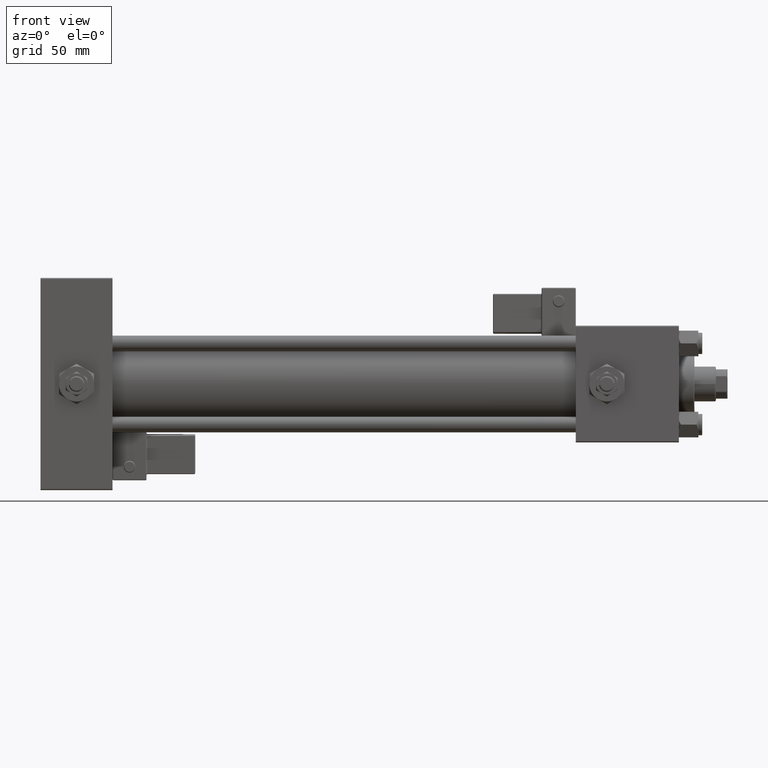
[diagram: clean part render]
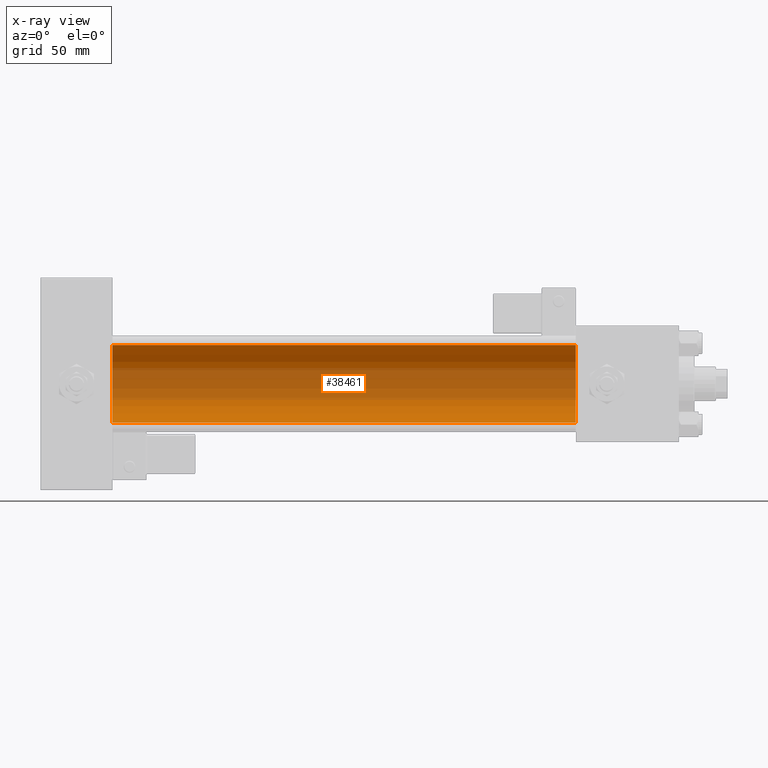
[diagram: x-ray — body ghosted, one internal face saturated and labeled with its STEP entity id]
A machine part, front view, then the same camera in x-ray: the body is ghosted and one INTERNAL B-rep face — a face not visible from any outside direction — is saturated and labeled: STEP entity #38461.
In plain terms, the highlighted cylindrical surface (partial cylindrical patch) has radius 20 mm, axis along (-1, -0, -0).
Its self-contained STEP definition (entity closure, byte-faithful):
#925 = DIRECTION ( 'NONE',  ( 0.000000000000000000, 0.000000000000000000, -1.000000000000000000 ) ) ;
#1566 = VERTEX_POINT ( 'NONE', #9895 ) ;
#1759 = DIRECTION ( 'NONE',  ( -1.000000000000000000, -0.000000000000000000, -0.000000000000000000 ) ) ;
#2957 = VECTOR ( 'NONE', #1759, 1000.000000000000000 ) ;
#3014 = DIRECTION ( 'NONE',  ( 0.000000000000000000, 0.000000000000000000, 1.000000000000000000 ) ) ;
#3849 = CARTESIAN_POINT ( 'NONE',  ( 274.9999999999999432, -2.602085213965210642E-15, 20.00000000000000000 ) ) ;
#4988 = CARTESIAN_POINT ( 'NONE',  ( 274.9999999999999432, -2.602085213965210642E-15, 0.000000000000000000 ) ) ;
#5070 = CARTESIAN_POINT ( 'NONE',  ( 37.00000000000000000, -2.602085213965210642E-15, 0.000000000000000000 ) ) ;
#6344 = VERTEX_POINT ( 'NONE', #3849 ) ;
#7326 = ORIENTED_EDGE ( 'NONE', *, *, #37517, .T. ) ;
#8917 = DIRECTION ( 'NONE',  ( 1.000000000000000000, 0.000000000000000000, 0.000000000000000000 ) ) ;
#9895 = CARTESIAN_POINT ( 'NONE',  ( 274.9999999999999432, -1.527916156705042519E-16, -20.00000000000000000 ) ) ;
#10085 = ORIENTED_EDGE ( 'NONE', *, *, #11333, .T. ) ;
#11333 = EDGE_CURVE ( 'NONE', #6344, #53483, #31897, .T. ) ;
#12791 = EDGE_LOOP ( 'NONE', ( #32259, #7326, #10085, #14460 ) ) ;
#13438 = AXIS2_PLACEMENT_3D ( 'NONE', #33161, #15923, #3014 ) ;
#13992 = EDGE_CURVE ( 'NONE', #53996, #53483, #31069, .T. ) ;
#14460 = ORIENTED_EDGE ( 'NONE', *, *, #13992, .F. ) ;
#15200 = CARTESIAN_POINT ( 'NONE',  ( 274.9999999999999432, -2.602085213965210642E-15, 20.00000000000000000 ) ) ;
#15923 = DIRECTION ( 'NONE',  ( -1.000000000000000000, -0.000000000000000000, -0.000000000000000000 ) ) ;
#21254 = AXIS2_PLACEMENT_3D ( 'NONE', #4988, #34284, #51053 ) ;
#28617 = LINE ( 'NONE', #50043, #45759 ) ;
#31069 = CIRCLE ( 'NONE', #43365, 20.00000000000000000 ) ;
#31897 = LINE ( 'NONE', #15200, #2957 ) ;
#32259 = ORIENTED_EDGE ( 'NONE', *, *, #36956, .F. ) ;
#33161 = CARTESIAN_POINT ( 'NONE',  ( 274.9999999999999432, -2.602085213965210642E-15, 0.000000000000000000 ) ) ;
#34284 = DIRECTION ( 'NONE',  ( 1.000000000000000000, 0.000000000000000000, 0.000000000000000000 ) ) ;
#35237 = CIRCLE ( 'NONE', #21254, 20.00000000000000000 ) ;
#36956 = EDGE_CURVE ( 'NONE', #1566, #53996, #28617, .T. ) ;
#37517 = EDGE_CURVE ( 'NONE', #1566, #6344, #35237, .T. ) ;
#38461 = ADVANCED_FACE ( 'NONE', ( #40584 ), #49378, .F. ) ;
#38664 = CARTESIAN_POINT ( 'NONE',  ( 37.00000000000000000, -1.527916156705042519E-16, -20.00000000000000000 ) ) ;
#40584 = FACE_OUTER_BOUND ( 'NONE', #12791, .T. ) ;
#43365 = AXIS2_PLACEMENT_3D ( 'NONE', #5070, #8917, #925 ) ;
#43666 = CARTESIAN_POINT ( 'NONE',  ( 37.00000000000000000, -2.602085213965210642E-15, 20.00000000000000000 ) ) ;
#45759 = VECTOR ( 'NONE', #50318, 1000.000000000000000 ) ;
#49378 = CYLINDRICAL_SURFACE ( 'NONE', #13438, 20.00000000000000000 ) ;
#50043 = CARTESIAN_POINT ( 'NONE',  ( 274.9999999999999432, -1.527916156705042519E-16, -20.00000000000000000 ) ) ;
#50318 = DIRECTION ( 'NONE',  ( -1.000000000000000000, -0.000000000000000000, -0.000000000000000000 ) ) ;
#51053 = DIRECTION ( 'NONE',  ( 0.000000000000000000, 0.000000000000000000, -1.000000000000000000 ) ) ;
#53483 = VERTEX_POINT ( 'NONE', #43666 ) ;
#53996 = VERTEX_POINT ( 'NONE', #38664 ) ;